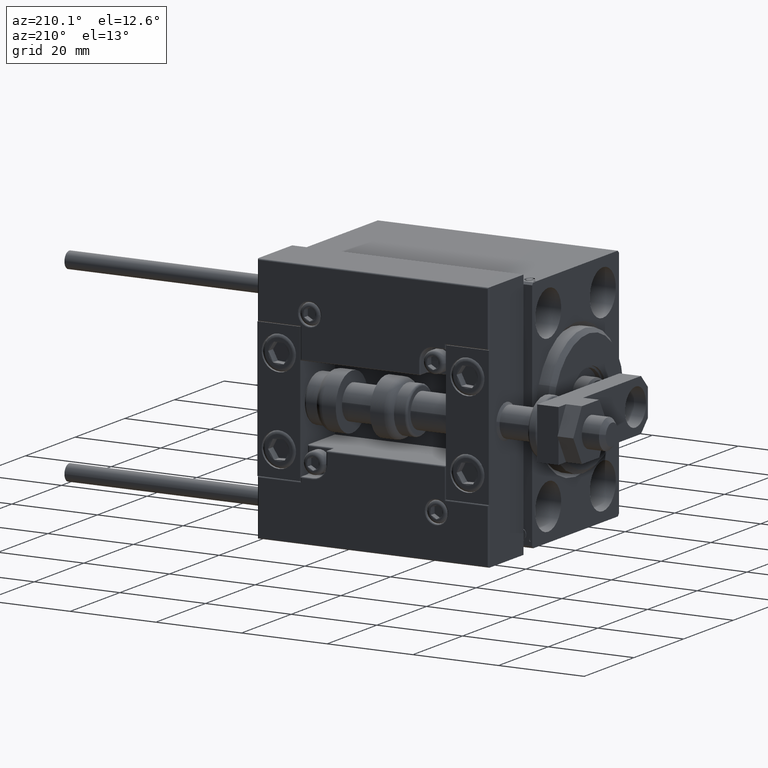
[diagram: clean part render]
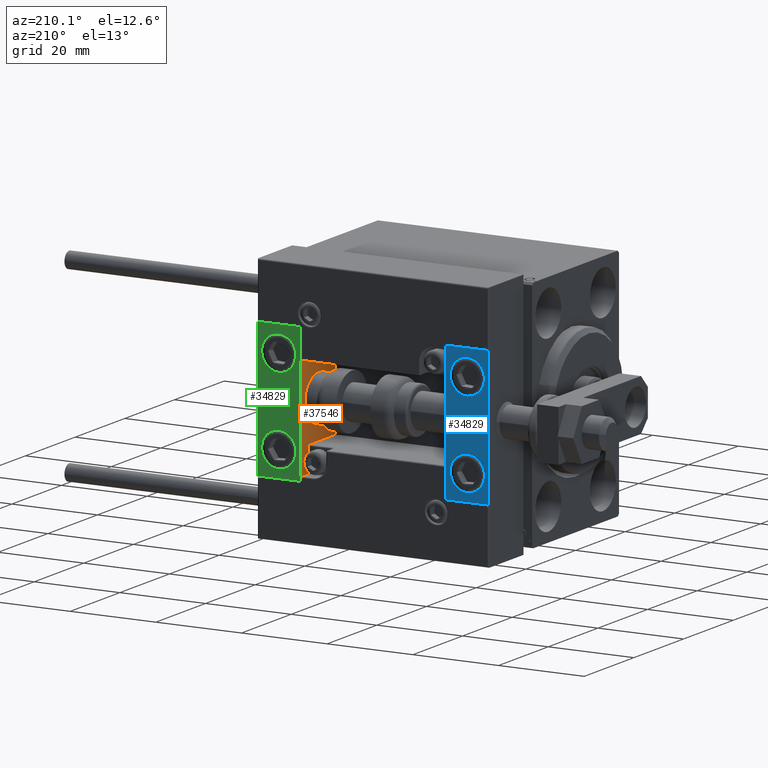
[diagram: same view with three faces highlighted in distinct colors, each labeled with its STEP entity id]
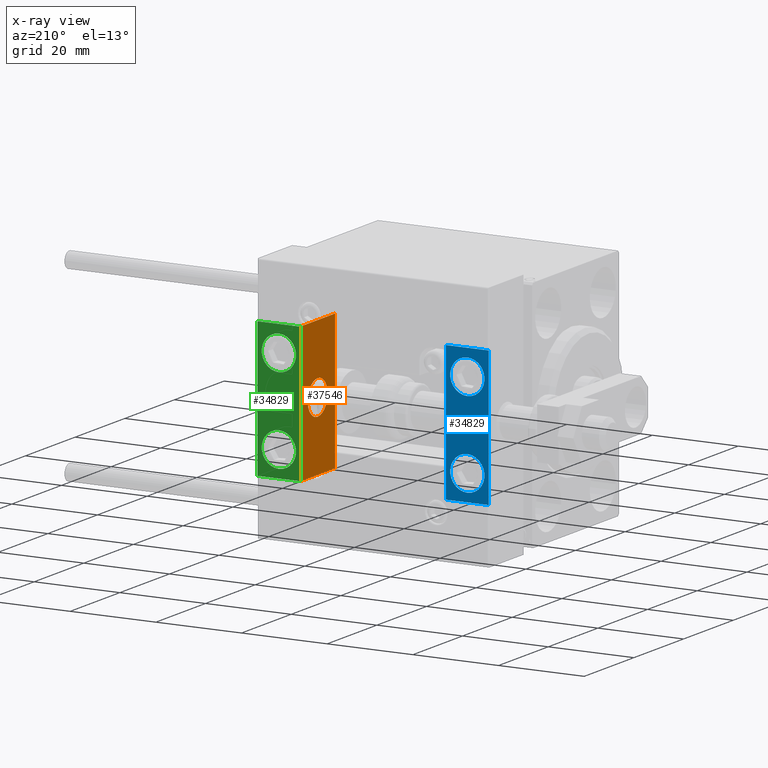
[diagram: x-ray of the same camera — body ghosted, the three highlighted faces saturated]
A machine part, auxiliary view with three faces highlighted in distinct colors.
The next image is the same camera in x-ray (body ghosted, the three faces saturated) — at least one of them is partly hidden behind the body in this view.
Their STEP definitions:

[orange] entity #37546 — the highlighted planar face has unit normal (-1, 0, 0).
#606 = EDGE_CURVE ( 'NONE', #4443, #22922, #33542, .T. ) ;
#920 = LINE ( 'NONE', #43825, #1600 ) ;
#1600 = VECTOR ( 'NONE', #47392, 1000.000000000000000 ) ;
#2168 = EDGE_LOOP ( 'NONE', ( #45191, #11300, #19885, #32350 ) ) ;
#4443 = VERTEX_POINT ( 'NONE', #46607 ) ;
#5461 = EDGE_CURVE ( 'NONE', #22922, #40502, #30275, .T. ) ;
#7824 = DIRECTION ( 'NONE',  ( 0.000000000000000000, 0.000000000000000000, 1.000000000000000000 ) ) ;
#8190 = CARTESIAN_POINT ( 'NONE',  ( 0.000000000000000000, -7.000000000000000000, 15.99999999999999289 ) ) ;
#10053 = VECTOR ( 'NONE', #31720, 1000.000000000000000 ) ;
#10332 = DIRECTION ( 'NONE',  ( -1.000000000000000000, 0.000000000000000000, -0.000000000000000000 ) ) ;
#10477 = EDGE_CURVE ( 'NONE', #49557, #40502, #920, .T. ) ;
#10693 = DIRECTION ( 'NONE',  ( 0.000000000000000000, 0.000000000000000000, -1.000000000000000000 ) ) ;
#11300 = ORIENTED_EDGE ( 'NONE', *, *, #35052, .F. ) ;
#12429 = VERTEX_POINT ( 'NONE', #31509 ) ;
#15536 = EDGE_CURVE ( 'NONE', #28080, #12429, #35859, .T. ) ;
#15707 = CARTESIAN_POINT ( 'NONE',  ( 0.000000000000000000, 0.000000000000000000, 0.000000000000000000 ) ) ;
#17304 = EDGE_LOOP ( 'NONE', ( #17346, #35235 ) ) ;
#17346 = ORIENTED_EDGE ( 'NONE', *, *, #32972, .F. ) ;
#19858 = AXIS2_PLACEMENT_3D ( 'NONE', #22938, #23191, #22443 ) ;
#19885 = ORIENTED_EDGE ( 'NONE', *, *, #606, .T. ) ;
#20039 = CARTESIAN_POINT ( 'NONE',  ( 0.000000000000000000, 7.000000000000000000, 15.99999999999999289 ) ) ;
#21760 = FACE_BOUND ( 'NONE', #17304, .T. ) ;
#22372 = CARTESIAN_POINT ( 'NONE',  ( 0.000000000000000000, 7.000000000000000000, 15.99999999999999289 ) ) ;
#22443 = DIRECTION ( 'NONE',  ( 0.000000000000000000, 0.000000000000000000, 1.000000000000000000 ) ) ;
#22922 = VERTEX_POINT ( 'NONE', #44317 ) ;
#22938 = CARTESIAN_POINT ( 'NONE',  ( 0.000000000000000000, 0.000000000000000000, 0.000000000000000000 ) ) ;
#23191 = DIRECTION ( 'NONE',  ( -1.000000000000000000, -0.000000000000000000, -0.000000000000000000 ) ) ;
#24809 = CARTESIAN_POINT ( 'NONE',  ( 0.000000000000000000, 4.898587196589412829E-16, -4.000000000000000000 ) ) ;
#25075 = VECTOR ( 'NONE', #45788, 1000.000000000000000 ) ;
#27158 = AXIS2_PLACEMENT_3D ( 'NONE', #49220, #10332, #48970 ) ;
#27616 = DIRECTION ( 'NONE',  ( -1.000000000000000000, -0.000000000000000000, -0.000000000000000000 ) ) ;
#27903 = LINE ( 'NONE', #20039, #10053 ) ;
#28080 = VERTEX_POINT ( 'NONE', #24809 ) ;
#29122 = PLANE ( 'NONE',  #27158 ) ;
#30275 = LINE ( 'NONE', #38416, #25075 ) ;
#31509 = CARTESIAN_POINT ( 'NONE',  ( 0.000000000000000000, 0.000000000000000000, 4.000000000000000000 ) ) ;
#31720 = DIRECTION ( 'NONE',  ( 0.000000000000000000, -1.000000000000000000, 0.000000000000000000 ) ) ;
#32350 = ORIENTED_EDGE ( 'NONE', *, *, #5461, .T. ) ;
#32972 = EDGE_CURVE ( 'NONE', #12429, #28080, #40165, .T. ) ;
#33542 = LINE ( 'NONE', #22372, #43153 ) ;
#35052 = EDGE_CURVE ( 'NONE', #4443, #49557, #27903, .T. ) ;
#35235 = ORIENTED_EDGE ( 'NONE', *, *, #15536, .F. ) ;
#35859 = CIRCLE ( 'NONE', #41569, 4.000000000000000000 ) ;
#37287 = FACE_OUTER_BOUND ( 'NONE', #2168, .T. ) ;
#37546 = ADVANCED_FACE ( 'NONE', ( #21760, #37287 ), #29122, .T. ) ;
#38416 = CARTESIAN_POINT ( 'NONE',  ( 0.000000000000000000, 7.000000000000000000, -16.00000000000000711 ) ) ;
#40165 = CIRCLE ( 'NONE', #19858, 4.000000000000000000 ) ;
#40502 = VERTEX_POINT ( 'NONE', #49782 ) ;
#41569 = AXIS2_PLACEMENT_3D ( 'NONE', #15707, #27616, #7824 ) ;
#43153 = VECTOR ( 'NONE', #10693, 1000.000000000000000 ) ;
#43825 = CARTESIAN_POINT ( 'NONE',  ( 0.000000000000000000, -7.000000000000000000, 15.99999999999999289 ) ) ;
#44317 = CARTESIAN_POINT ( 'NONE',  ( 0.000000000000000000, 7.000000000000000000, -16.00000000000000711 ) ) ;
#45191 = ORIENTED_EDGE ( 'NONE', *, *, #10477, .F. ) ;
#45788 = DIRECTION ( 'NONE',  ( 0.000000000000000000, -1.000000000000000000, 0.000000000000000000 ) ) ;
#46607 = CARTESIAN_POINT ( 'NONE',  ( 0.000000000000000000, 7.000000000000000000, 15.99999999999999289 ) ) ;
#47392 = DIRECTION ( 'NONE',  ( 0.000000000000000000, 0.000000000000000000, -1.000000000000000000 ) ) ;
#48970 = DIRECTION ( 'NONE',  ( -0.000000000000000000, 0.000000000000000000, 1.000000000000000000 ) ) ;
#49220 = CARTESIAN_POINT ( 'NONE',  ( 0.000000000000000000, 0.000000000000000000, 0.000000000000000000 ) ) ;
#49557 = VERTEX_POINT ( 'NONE', #8190 ) ;
#49782 = CARTESIAN_POINT ( 'NONE',  ( 0.000000000000000000, -7.000000000000000000, -16.00000000000000711 ) ) ;

[blue] entity #34829 — the highlighted planar face has unit normal (-0, 1, -0).
#571 = CARTESIAN_POINT ( 'NONE',  ( 10.00000000000000000, 7.000000000000000000, -16.00000000000000711 ) ) ;
#606 = EDGE_CURVE ( 'NONE', #4443, #22922, #33542, .T. ) ;
#949 = EDGE_CURVE ( 'NONE', #4548, #4443, #30606, .T. ) ;
#1067 = DIRECTION ( 'NONE',  ( 1.848892746611746419E-32, -1.000000000000000000, 6.616381192988677562E-17 ) ) ;
#1366 = FACE_BOUND ( 'NONE', #15934, .T. ) ;
#1611 = CARTESIAN_POINT ( 'NONE',  ( 5.000000000000000888, 7.000000000000000888, 10.00000000000000178 ) ) ;
#2605 = CARTESIAN_POINT ( 'NONE',  ( 5.000000000000001776, 7.000000000000000888, 6.000000000000000888 ) ) ;
#3408 = ORIENTED_EDGE ( 'NONE', *, *, #9406, .F. ) ;
#3629 = LINE ( 'NONE', #571, #43708 ) ;
#4443 = VERTEX_POINT ( 'NONE', #46607 ) ;
#4455 = VERTEX_POINT ( 'NONE', #15615 ) ;
#4548 = VERTEX_POINT ( 'NONE', #40465 ) ;
#4565 = ORIENTED_EDGE ( 'NONE', *, *, #39400, .F. ) ;
#5775 = VERTEX_POINT ( 'NONE', #26397 ) ;
#6334 = ORIENTED_EDGE ( 'NONE', *, *, #48692, .T. ) ;
#9406 = EDGE_CURVE ( 'NONE', #46441, #5775, #10476, .T. ) ;
#9884 = VERTEX_POINT ( 'NONE', #49333 ) ;
#10476 = CIRCLE ( 'NONE', #21025, 4.000000000000000888 ) ;
#10693 = DIRECTION ( 'NONE',  ( 0.000000000000000000, 0.000000000000000000, -1.000000000000000000 ) ) ;
#10839 = ORIENTED_EDGE ( 'NONE', *, *, #21687, .T. ) ;
#12790 = DIRECTION ( 'NONE',  ( 0.000000000000000000, -0.000000000000000000, 1.000000000000000000 ) ) ;
#13976 = EDGE_LOOP ( 'NONE', ( #44310, #10839 ) ) ;
#15615 = CARTESIAN_POINT ( 'NONE',  ( 5.000000000000000888, 7.000000000000000888, 14.00000000000000178 ) ) ;
#15934 = EDGE_LOOP ( 'NONE', ( #3408, #4565 ) ) ;
#16365 = DIRECTION ( 'NONE',  ( -0.000000000000000000, 1.000000000000000000, 0.000000000000000000 ) ) ;
#17250 = AXIS2_PLACEMENT_3D ( 'NONE', #1611, #31346, #39735 ) ;
#17330 = EDGE_CURVE ( 'NONE', #4455, #29729, #44821, .T. ) ;
#18338 = AXIS2_PLACEMENT_3D ( 'NONE', #33305, #40702, #28980 ) ;
#18924 = VECTOR ( 'NONE', #24085, 1000.000000000000000 ) ;
#19694 = DIRECTION ( 'NONE',  ( 0.000000000000000000, 0.000000000000000000, 1.000000000000000000 ) ) ;
#19877 = EDGE_CURVE ( 'NONE', #4548, #9884, #38606, .T. ) ;
#20610 = AXIS2_PLACEMENT_3D ( 'NONE', #28702, #1067, #32028 ) ;
#21025 = AXIS2_PLACEMENT_3D ( 'NONE', #26538, #34674, #19694 ) ;
#21687 = EDGE_CURVE ( 'NONE', #29729, #4455, #48239, .T. ) ;
#22372 = CARTESIAN_POINT ( 'NONE',  ( 0.000000000000000000, 7.000000000000000000, 15.99999999999999289 ) ) ;
#22397 = CARTESIAN_POINT ( 'NONE',  ( 5.000000000000000888, 6.999999999999999112, -6.000000000000000888 ) ) ;
#22922 = VERTEX_POINT ( 'NONE', #44317 ) ;
#24085 = DIRECTION ( 'NONE',  ( 0.000000000000000000, 0.000000000000000000, -1.000000000000000000 ) ) ;
#24803 = CIRCLE ( 'NONE', #18338, 4.000000000000000888 ) ;
#25894 = FACE_OUTER_BOUND ( 'NONE', #40654, .T. ) ;
#26397 = CARTESIAN_POINT ( 'NONE',  ( 5.000000000000001776, 6.999999999999999112, -14.00000000000000178 ) ) ;
#26538 = CARTESIAN_POINT ( 'NONE',  ( 5.000000000000000888, 6.999999999999999112, -10.00000000000000178 ) ) ;
#26959 = DIRECTION ( 'NONE',  ( -1.000000000000000000, -0.000000000000000000, -0.000000000000000000 ) ) ;
#28702 = CARTESIAN_POINT ( 'NONE',  ( 5.000000000000000888, 7.000000000000000888, 10.00000000000000178 ) ) ;
#28980 = DIRECTION ( 'NONE',  ( 0.000000000000000000, 0.000000000000000000, 1.000000000000000000 ) ) ;
#29602 = CARTESIAN_POINT ( 'NONE',  ( 10.00000000000000000, 7.000000000000000000, 15.99999999999999289 ) ) ;
#29729 = VERTEX_POINT ( 'NONE', #2605 ) ;
#30361 = ORIENTED_EDGE ( 'NONE', *, *, #949, .F. ) ;
#30606 = LINE ( 'NONE', #29602, #36650 ) ;
#31346 = DIRECTION ( 'NONE',  ( 1.848892746611746419E-32, -1.000000000000000000, 6.616381192988677562E-17 ) ) ;
#32028 = DIRECTION ( 'NONE',  ( 0.000000000000000000, 0.000000000000000000, 1.000000000000000000 ) ) ;
#32084 = PLANE ( 'NONE',  #47422 ) ;
#33305 = CARTESIAN_POINT ( 'NONE',  ( 5.000000000000000888, 6.999999999999999112, -10.00000000000000178 ) ) ;
#33542 = LINE ( 'NONE', #22372, #43153 ) ;
#34524 = CARTESIAN_POINT ( 'NONE',  ( 10.00000000000000000, 7.000000000000000000, 15.99999999999999289 ) ) ;
#34674 = DIRECTION ( 'NONE',  ( 0.000000000000000000, 1.000000000000000000, -6.065466699219605527E-17 ) ) ;
#34829 = ADVANCED_FACE ( 'NONE', ( #25894, #1366, #35910 ), #32084, .T. ) ;
#35910 = FACE_BOUND ( 'NONE', #13976, .T. ) ;
#36411 = CARTESIAN_POINT ( 'NONE',  ( 10.00000000000000000, 7.000000000000000000, 15.99999999999999289 ) ) ;
#36650 = VECTOR ( 'NONE', #37759, 1000.000000000000000 ) ;
#37759 = DIRECTION ( 'NONE',  ( -1.000000000000000000, -0.000000000000000000, -0.000000000000000000 ) ) ;
#38606 = LINE ( 'NONE', #34524, #18924 ) ;
#39400 = EDGE_CURVE ( 'NONE', #5775, #46441, #24803, .T. ) ;
#39554 = ORIENTED_EDGE ( 'NONE', *, *, #606, .F. ) ;
#39735 = DIRECTION ( 'NONE',  ( 0.000000000000000000, 0.000000000000000000, 1.000000000000000000 ) ) ;
#40465 = CARTESIAN_POINT ( 'NONE',  ( 10.00000000000000000, 7.000000000000000000, 15.99999999999999289 ) ) ;
#40654 = EDGE_LOOP ( 'NONE', ( #39554, #30361, #42425, #6334 ) ) ;
#40702 = DIRECTION ( 'NONE',  ( 0.000000000000000000, 1.000000000000000000, -6.065466699219605527E-17 ) ) ;
#42425 = ORIENTED_EDGE ( 'NONE', *, *, #19877, .T. ) ;
#43153 = VECTOR ( 'NONE', #10693, 1000.000000000000000 ) ;
#43708 = VECTOR ( 'NONE', #26959, 1000.000000000000000 ) ;
#44310 = ORIENTED_EDGE ( 'NONE', *, *, #17330, .T. ) ;
#44317 = CARTESIAN_POINT ( 'NONE',  ( 0.000000000000000000, 7.000000000000000000, -16.00000000000000711 ) ) ;
#44821 = CIRCLE ( 'NONE', #17250, 4.000000000000000000 ) ;
#46441 = VERTEX_POINT ( 'NONE', #22397 ) ;
#46607 = CARTESIAN_POINT ( 'NONE',  ( 0.000000000000000000, 7.000000000000000000, 15.99999999999999289 ) ) ;
#47422 = AXIS2_PLACEMENT_3D ( 'NONE', #36411, #16365, #12790 ) ;
#48239 = CIRCLE ( 'NONE', #20610, 4.000000000000000000 ) ;
#48692 = EDGE_CURVE ( 'NONE', #9884, #22922, #3629, .T. ) ;
#49333 = CARTESIAN_POINT ( 'NONE',  ( 10.00000000000000000, 7.000000000000000000, -16.00000000000000711 ) ) ;

[green] entity #34829 — the highlighted planar face has unit normal (0, 1, 0).
#571 = CARTESIAN_POINT ( 'NONE',  ( 10.00000000000000000, 7.000000000000000000, -16.00000000000000711 ) ) ;
#606 = EDGE_CURVE ( 'NONE', #4443, #22922, #33542, .T. ) ;
#949 = EDGE_CURVE ( 'NONE', #4548, #4443, #30606, .T. ) ;
#1067 = DIRECTION ( 'NONE',  ( 1.848892746611746419E-32, -1.000000000000000000, 6.616381192988677562E-17 ) ) ;
#1366 = FACE_BOUND ( 'NONE', #15934, .T. ) ;
#1611 = CARTESIAN_POINT ( 'NONE',  ( 5.000000000000000888, 7.000000000000000888, 10.00000000000000178 ) ) ;
#2605 = CARTESIAN_POINT ( 'NONE',  ( 5.000000000000001776, 7.000000000000000888, 6.000000000000000888 ) ) ;
#3408 = ORIENTED_EDGE ( 'NONE', *, *, #9406, .F. ) ;
#3629 = LINE ( 'NONE', #571, #43708 ) ;
#4443 = VERTEX_POINT ( 'NONE', #46607 ) ;
#4455 = VERTEX_POINT ( 'NONE', #15615 ) ;
#4548 = VERTEX_POINT ( 'NONE', #40465 ) ;
#4565 = ORIENTED_EDGE ( 'NONE', *, *, #39400, .F. ) ;
#5775 = VERTEX_POINT ( 'NONE', #26397 ) ;
#6334 = ORIENTED_EDGE ( 'NONE', *, *, #48692, .T. ) ;
#9406 = EDGE_CURVE ( 'NONE', #46441, #5775, #10476, .T. ) ;
#9884 = VERTEX_POINT ( 'NONE', #49333 ) ;
#10476 = CIRCLE ( 'NONE', #21025, 4.000000000000000888 ) ;
#10693 = DIRECTION ( 'NONE',  ( 0.000000000000000000, 0.000000000000000000, -1.000000000000000000 ) ) ;
#10839 = ORIENTED_EDGE ( 'NONE', *, *, #21687, .T. ) ;
#12790 = DIRECTION ( 'NONE',  ( 0.000000000000000000, -0.000000000000000000, 1.000000000000000000 ) ) ;
#13976 = EDGE_LOOP ( 'NONE', ( #44310, #10839 ) ) ;
#15615 = CARTESIAN_POINT ( 'NONE',  ( 5.000000000000000888, 7.000000000000000888, 14.00000000000000178 ) ) ;
#15934 = EDGE_LOOP ( 'NONE', ( #3408, #4565 ) ) ;
#16365 = DIRECTION ( 'NONE',  ( -0.000000000000000000, 1.000000000000000000, 0.000000000000000000 ) ) ;
#17250 = AXIS2_PLACEMENT_3D ( 'NONE', #1611, #31346, #39735 ) ;
#17330 = EDGE_CURVE ( 'NONE', #4455, #29729, #44821, .T. ) ;
#18338 = AXIS2_PLACEMENT_3D ( 'NONE', #33305, #40702, #28980 ) ;
#18924 = VECTOR ( 'NONE', #24085, 1000.000000000000000 ) ;
#19694 = DIRECTION ( 'NONE',  ( 0.000000000000000000, 0.000000000000000000, 1.000000000000000000 ) ) ;
#19877 = EDGE_CURVE ( 'NONE', #4548, #9884, #38606, .T. ) ;
#20610 = AXIS2_PLACEMENT_3D ( 'NONE', #28702, #1067, #32028 ) ;
#21025 = AXIS2_PLACEMENT_3D ( 'NONE', #26538, #34674, #19694 ) ;
#21687 = EDGE_CURVE ( 'NONE', #29729, #4455, #48239, .T. ) ;
#22372 = CARTESIAN_POINT ( 'NONE',  ( 0.000000000000000000, 7.000000000000000000, 15.99999999999999289 ) ) ;
#22397 = CARTESIAN_POINT ( 'NONE',  ( 5.000000000000000888, 6.999999999999999112, -6.000000000000000888 ) ) ;
#22922 = VERTEX_POINT ( 'NONE', #44317 ) ;
#24085 = DIRECTION ( 'NONE',  ( 0.000000000000000000, 0.000000000000000000, -1.000000000000000000 ) ) ;
#24803 = CIRCLE ( 'NONE', #18338, 4.000000000000000888 ) ;
#25894 = FACE_OUTER_BOUND ( 'NONE', #40654, .T. ) ;
#26397 = CARTESIAN_POINT ( 'NONE',  ( 5.000000000000001776, 6.999999999999999112, -14.00000000000000178 ) ) ;
#26538 = CARTESIAN_POINT ( 'NONE',  ( 5.000000000000000888, 6.999999999999999112, -10.00000000000000178 ) ) ;
#26959 = DIRECTION ( 'NONE',  ( -1.000000000000000000, -0.000000000000000000, -0.000000000000000000 ) ) ;
#28702 = CARTESIAN_POINT ( 'NONE',  ( 5.000000000000000888, 7.000000000000000888, 10.00000000000000178 ) ) ;
#28980 = DIRECTION ( 'NONE',  ( 0.000000000000000000, 0.000000000000000000, 1.000000000000000000 ) ) ;
#29602 = CARTESIAN_POINT ( 'NONE',  ( 10.00000000000000000, 7.000000000000000000, 15.99999999999999289 ) ) ;
#29729 = VERTEX_POINT ( 'NONE', #2605 ) ;
#30361 = ORIENTED_EDGE ( 'NONE', *, *, #949, .F. ) ;
#30606 = LINE ( 'NONE', #29602, #36650 ) ;
#31346 = DIRECTION ( 'NONE',  ( 1.848892746611746419E-32, -1.000000000000000000, 6.616381192988677562E-17 ) ) ;
#32028 = DIRECTION ( 'NONE',  ( 0.000000000000000000, 0.000000000000000000, 1.000000000000000000 ) ) ;
#32084 = PLANE ( 'NONE',  #47422 ) ;
#33305 = CARTESIAN_POINT ( 'NONE',  ( 5.000000000000000888, 6.999999999999999112, -10.00000000000000178 ) ) ;
#33542 = LINE ( 'NONE', #22372, #43153 ) ;
#34524 = CARTESIAN_POINT ( 'NONE',  ( 10.00000000000000000, 7.000000000000000000, 15.99999999999999289 ) ) ;
#34674 = DIRECTION ( 'NONE',  ( 0.000000000000000000, 1.000000000000000000, -6.065466699219605527E-17 ) ) ;
#34829 = ADVANCED_FACE ( 'NONE', ( #25894, #1366, #35910 ), #32084, .T. ) ;
#35910 = FACE_BOUND ( 'NONE', #13976, .T. ) ;
#36411 = CARTESIAN_POINT ( 'NONE',  ( 10.00000000000000000, 7.000000000000000000, 15.99999999999999289 ) ) ;
#36650 = VECTOR ( 'NONE', #37759, 1000.000000000000000 ) ;
#37759 = DIRECTION ( 'NONE',  ( -1.000000000000000000, -0.000000000000000000, -0.000000000000000000 ) ) ;
#38606 = LINE ( 'NONE', #34524, #18924 ) ;
#39400 = EDGE_CURVE ( 'NONE', #5775, #46441, #24803, .T. ) ;
#39554 = ORIENTED_EDGE ( 'NONE', *, *, #606, .F. ) ;
#39735 = DIRECTION ( 'NONE',  ( 0.000000000000000000, 0.000000000000000000, 1.000000000000000000 ) ) ;
#40465 = CARTESIAN_POINT ( 'NONE',  ( 10.00000000000000000, 7.000000000000000000, 15.99999999999999289 ) ) ;
#40654 = EDGE_LOOP ( 'NONE', ( #39554, #30361, #42425, #6334 ) ) ;
#40702 = DIRECTION ( 'NONE',  ( 0.000000000000000000, 1.000000000000000000, -6.065466699219605527E-17 ) ) ;
#42425 = ORIENTED_EDGE ( 'NONE', *, *, #19877, .T. ) ;
#43153 = VECTOR ( 'NONE', #10693, 1000.000000000000000 ) ;
#43708 = VECTOR ( 'NONE', #26959, 1000.000000000000000 ) ;
#44310 = ORIENTED_EDGE ( 'NONE', *, *, #17330, .T. ) ;
#44317 = CARTESIAN_POINT ( 'NONE',  ( 0.000000000000000000, 7.000000000000000000, -16.00000000000000711 ) ) ;
#44821 = CIRCLE ( 'NONE', #17250, 4.000000000000000000 ) ;
#46441 = VERTEX_POINT ( 'NONE', #22397 ) ;
#46607 = CARTESIAN_POINT ( 'NONE',  ( 0.000000000000000000, 7.000000000000000000, 15.99999999999999289 ) ) ;
#47422 = AXIS2_PLACEMENT_3D ( 'NONE', #36411, #16365, #12790 ) ;
#48239 = CIRCLE ( 'NONE', #20610, 4.000000000000000000 ) ;
#48692 = EDGE_CURVE ( 'NONE', #9884, #22922, #3629, .T. ) ;
#49333 = CARTESIAN_POINT ( 'NONE',  ( 10.00000000000000000, 7.000000000000000000, -16.00000000000000711 ) ) ;